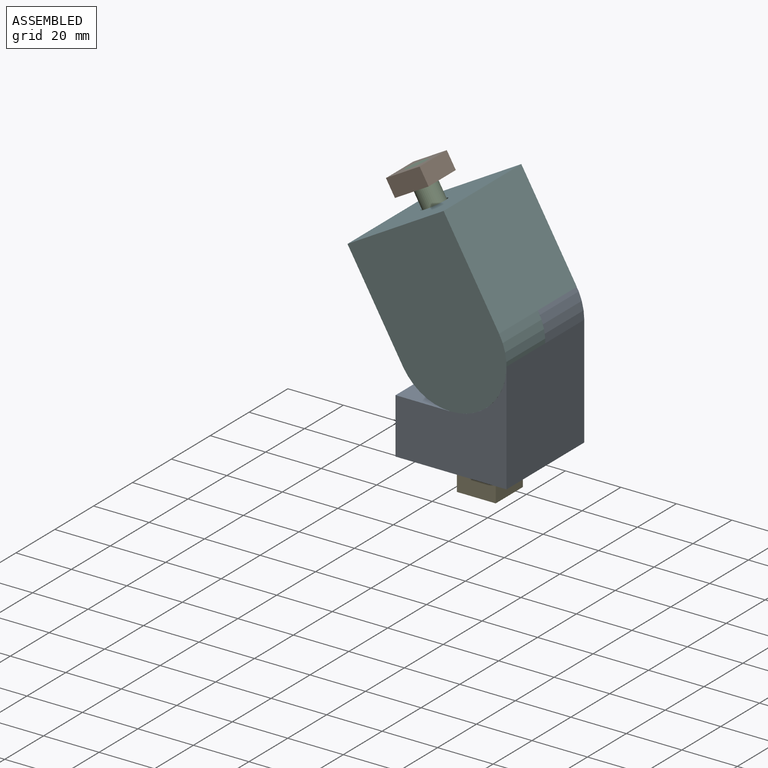
[diagram: assembled view]
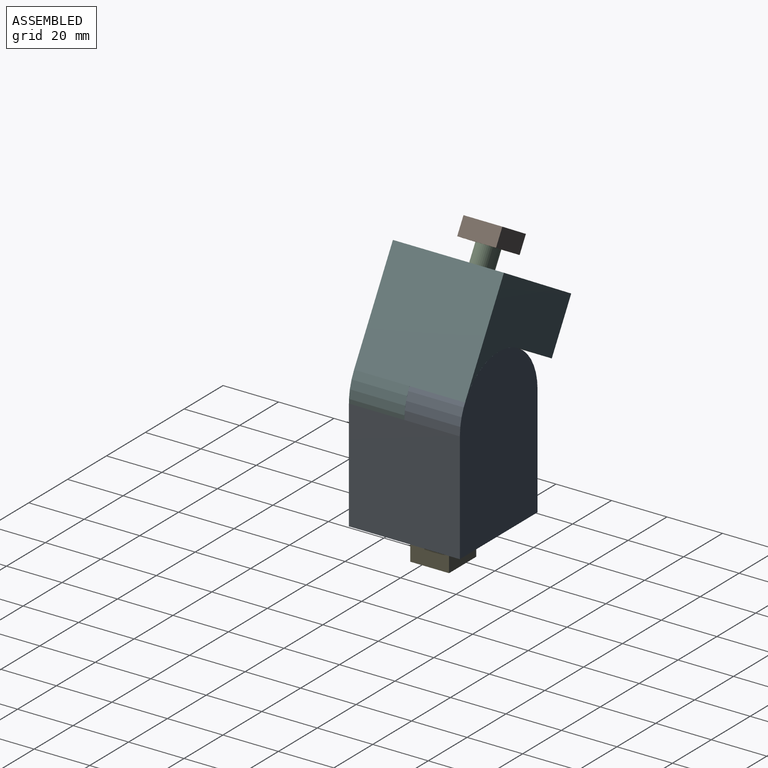
[diagram: assembled view, second angle]
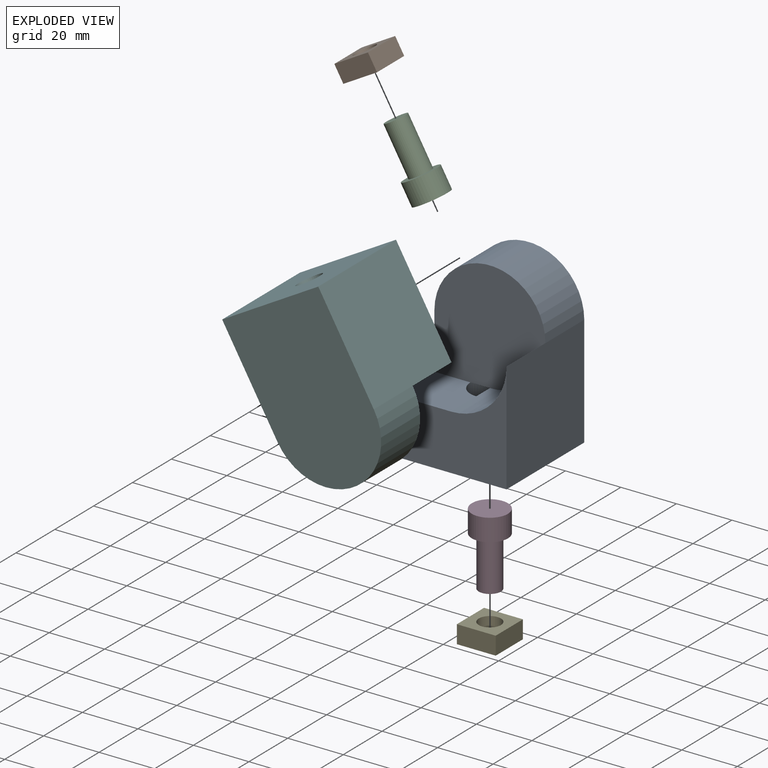
[diagram: exploded view]
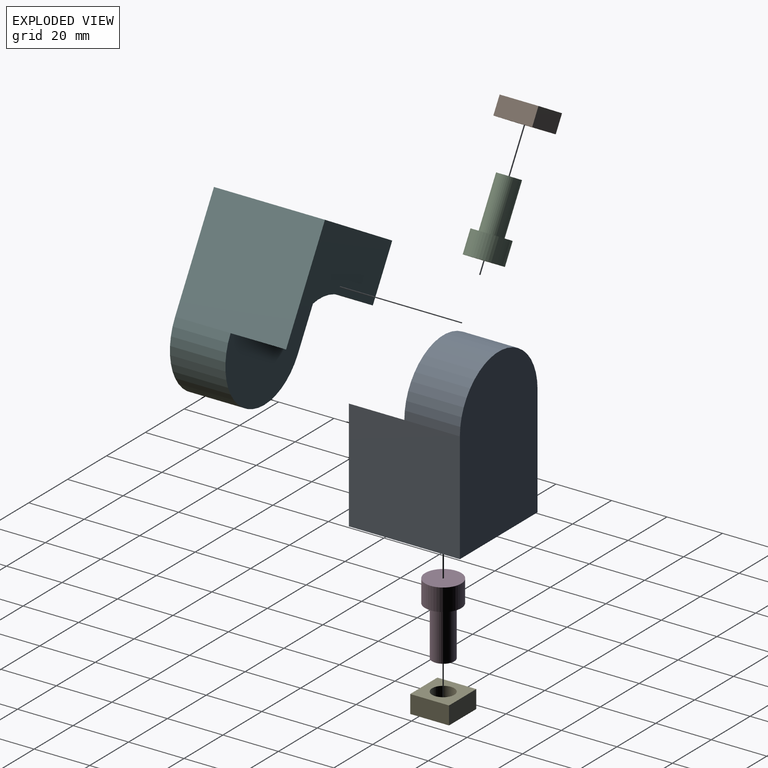
[diagram: exploded view, second angle]
ASSEMBLY  parts=6 mates=5
PART A: 13 faces, bbox 40x40x60 mm
  f0: plane 14x14mm, normal (0,0,-1), area 115.5mm2, adj f2,f6,f9
  f1: plane 14x14mm, normal (0,0,1), area 90.3mm2, adj f2,f3
  f2: cylinder r=7mm len=15mm, axis (0,0,-1), area 659.7mm2, adj f0,f1,f8
  f3: cylinder r=4.5mm len=9mm, axis (0,0,-1), area 141.4mm2, adj f1,f11
  f4: cylinder r=20mm len=40mm, axis (0,1,0), area 1256.6mm2, adj f5,f6,f7,f10
  f5: plane 60x40mm, normal (0,1,0), area 2228.3mm2, adj f4,f7,f10,f11
  f6: plane 40x40mm, normal (0,-1,0), area 1342.5mm2, adj f0,f4,f7,f8,f9
  f7: plane 40x40mm, normal (-1,0,0), area 1200mm2, adj f4,f5,f6,f8,f11,f12
  f8: plane 20x20mm, normal (0,0,1), area 361.5mm2, adj f2,f6,f7,f9,f12
  f9: cylinder r=20mm len=20mm, axis (0,-1,0), area 628.3mm2, adj f0,f6,f8,f10,f12
  f10: plane 40x40mm, normal (1,0,0), area 1600mm2, adj f4,f5,f9,f11,f12
  f11: plane 40x40mm, normal (0,0,-1), area 1536.4mm2, adj f3,f5,f7,f10,f12
  f12: plane 40x40mm, normal (0,-1,0), area 885.8mm2, adj f7,f8,f9,f10,f11
PART B: 7 faces, bbox 15.4x14x12.6 mm
  f0: cylinder r=4mm len=10.18mm, axis (-0.5,0,0.87), area 163.4mm2, adj f5,f6
  f1: plane 15.37x12.63mm, normal (0,1,0), area 91mm2, adj f2,f4,f5,f6
  f2: plane 14x5.63mm, normal (0.87,0,0.5), area 91mm2, adj f1,f3,f5,f6
  f3: plane 15.37x12.63mm, normal (0,-1,0), area 91mm2, adj f2,f4,f5,f6
  f4: plane 14x5.63mm, normal (-0.87,0,-0.5), area 91mm2, adj f1,f3,f5,f6
  f5: plane 14x12.12mm, normal (0.5,0,-0.87), area 145.7mm2, adj f0,f1,f2,f3,f4
  f6: plane 14x12.12mm, normal (-0.5,0,0.87), area 145.7mm2, adj f0,f1,f2,f3,f4
PART C: 5 faces, bbox 22.1x13x27.8 mm
  f0: cylinder r=4mm len=19.59mm, axis (-0.5,0,0.87), area 452.4mm2, adj f1,f4
  f1: plane 8x6.93mm, normal (-0.5,0,0.87), area 50.3mm2, adj f0
  f2: cylinder r=6.5mm len=15.26mm, axis (0.5,0,-0.87), area 326.7mm2, adj f3,f4
  f3: plane 13x11.26mm, normal (0.5,0,-0.87), area 132.7mm2, adj f2
  f4: plane 13x11.26mm, normal (-0.5,0,0.87), area 82.5mm2, adj f0,f2
PART D: 5 faces, bbox 13x13x26 mm
  f0: cylinder r=4mm len=18mm, axis (0,0,-1), area 452.4mm2, adj f1,f4
  f1: plane 8x8mm, normal (0,0,-1), area 50.3mm2, adj f0
  f2: cylinder r=6.5mm len=13mm, axis (0,0,1), area 326.7mm2, adj f3,f4
  f3: plane 13x13mm, normal (0,0,1), area 132.7mm2, adj f2
  f4: plane 13x13mm, normal (0,0,-1), area 82.5mm2, adj f0,f2
PART E: 7 faces, bbox 14x14x6.5 mm
  f0: cylinder r=4mm len=8mm, axis (0,0,-1), area 163.4mm2, adj f5,f6
  f1: plane 14x6.5mm, normal (0,-1,0), area 91mm2, adj f2,f4,f5,f6
  f2: plane 14x6.5mm, normal (1,0,0), area 91mm2, adj f1,f3,f5,f6
  f3: plane 14x6.5mm, normal (0,1,0), area 91mm2, adj f2,f4,f5,f6
  f4: plane 14x6.5mm, normal (-1,0,0), area 91mm2, adj f1,f3,f5,f6
  f5: plane 14x14mm, normal (0,0,1), area 145.7mm2, adj f0,f1,f2,f3,f4
  f6: plane 14x14mm, normal (0,0,-1), area 145.7mm2, adj f0,f1,f2,f3,f4
PART F: 13 faces, bbox 57.3x40x64.6 mm
  f0: plane 14x12.12mm, normal (-0.5,0,0.87), area 115.5mm2, adj f2,f6,f9
  f1: plane 14x12.12mm, normal (0.5,0,-0.87), area 90.3mm2, adj f2,f3
  f2: cylinder r=7mm len=19.99mm, axis (-0.5,0,0.87), area 659.7mm2, adj f0,f1,f8
  f3: cylinder r=4.5mm len=10.29mm, axis (-0.5,0,0.87), area 141.4mm2, adj f1,f11
  f4: cylinder r=20mm len=37.32mm, axis (0,-1,0), area 1256.6mm2, adj f5,f6,f7,f10
  f5: plane 64.64x57.32mm, normal (0,-1,0), area 2228.3mm2, adj f4,f7,f10,f11
  f6: plane 47.32x40mm, normal (0,1,0), area 1342.5mm2, adj f0,f4,f7,f8,f9
  f7: plane 40x34.64mm, normal (-0.87,0,-0.5), area 1200mm2, adj f4,f5,f6,f8,f11,f12
  f8: plane 20x17.32mm, normal (0.5,0,-0.87), area 361.5mm2, adj f2,f6,f7,f9,f12
  f9: cylinder r=20mm len=27.32mm, axis (0,1,0), area 628.3mm2, adj f0,f6,f8,f10,f12
  f10: plane 40x34.64mm, normal (0.87,0,0.5), area 1600mm2, adj f4,f5,f9,f11,f12
  f11: plane 40x34.64mm, normal (-0.5,0,0.87), area 1536.4mm2, adj f3,f5,f7,f10,f12
  f12: plane 54.64x37.32mm, normal (0,1,0), area 885.8mm2, adj f7,f8,f9,f10,f11
PLACE A t=(12.52,-73.83,-2.58)mm
PLACE B t=(11.27,-73.83,-0.42)mm
PLACE C t=(12.52,-73.83,-2.58)mm
PLACE D t=(12.52,-73.83,-2.58)mm
PLACE E t=(12.52,-73.83,-5.08)mm
PLACE F t=(12.52,-73.83,-2.58)mm
MATE cylindrical E.f0 <-> D.f0  axis (0,0,-1) through (12.52,-73.83,-55.58)mm
MATE fastened D.f0 <-> A.f2  axis (0,0,1) through (12.52,-73.83,-37.58)mm
MATE revolute A.f4 <-> F.f4  axis (0,-1,0) through (12.52,-73.83,-2.58)mm
MATE cylindrical B.f0 <-> C.f0  axis (-0.5,0,0.87) through (-13.98,-73.83,43.31)mm
MATE fastened C.f0 <-> F.f2  axis (-0.5,0,0.87) through (-4.98,-73.83,27.73)mm
